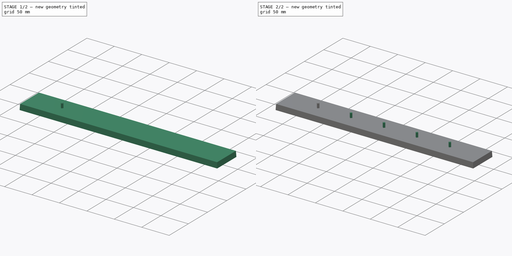
[diagram: build sequence overview — one tinted view per stage of 2, left to right]
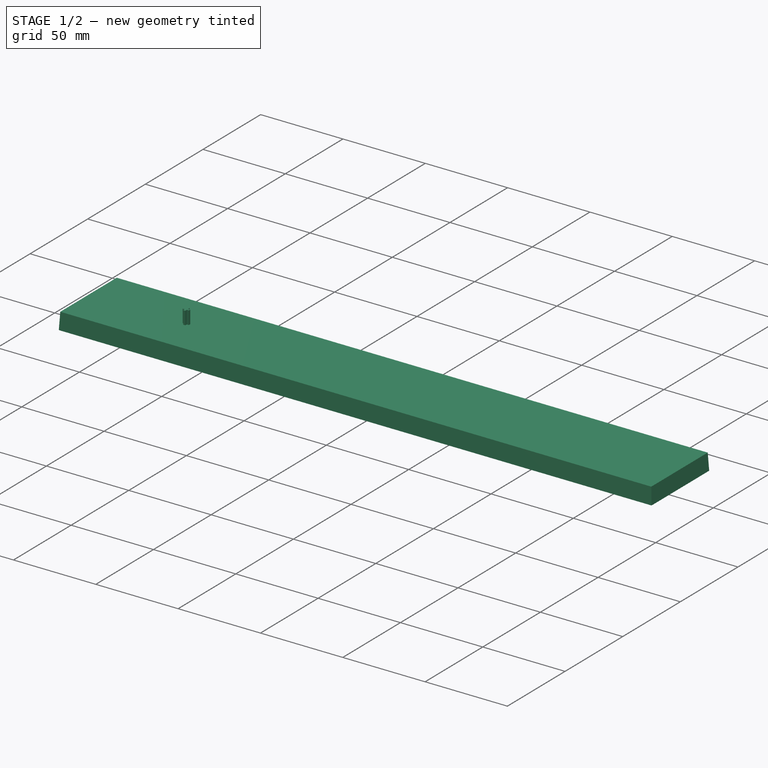
[diagram: stage 1 of 2 — iso view after this stage's code; geometry added in this stage tinted green]
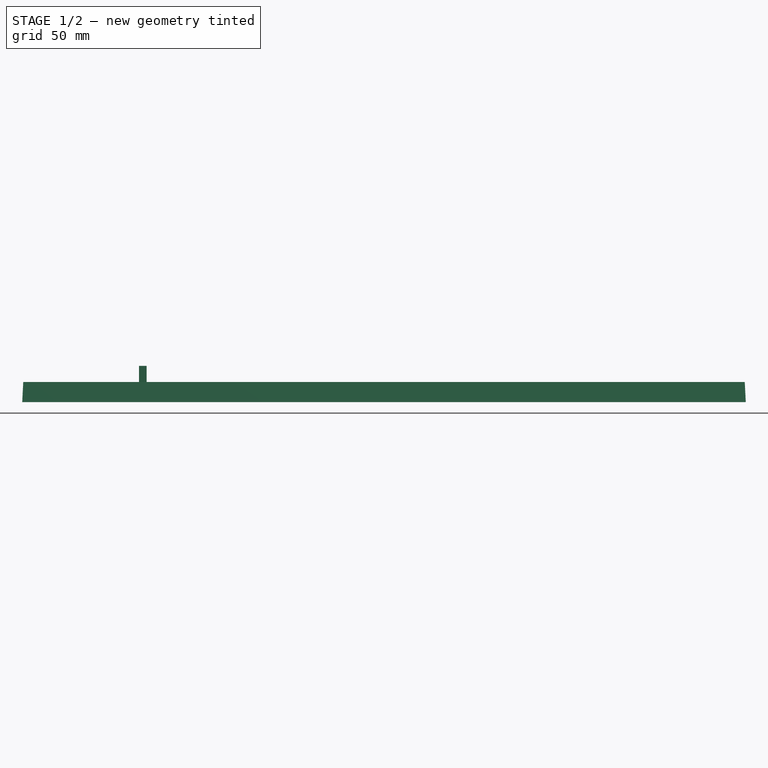
[diagram: stage 1 of 2 — front view after this stage's code; geometry added in this stage tinted green]
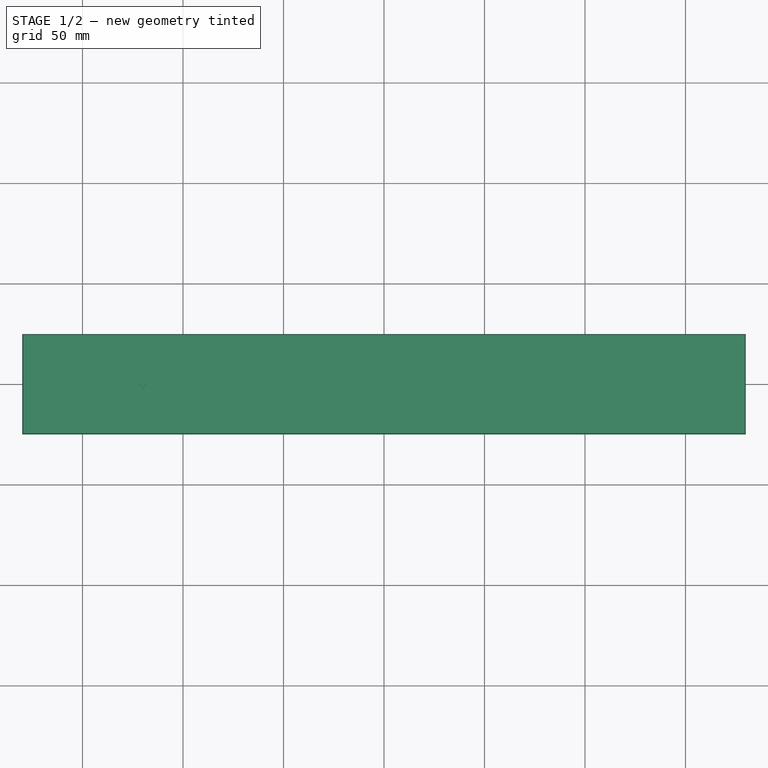
[diagram: stage 1 of 2 — top view after this stage's code; geometry added in this stage tinted green]
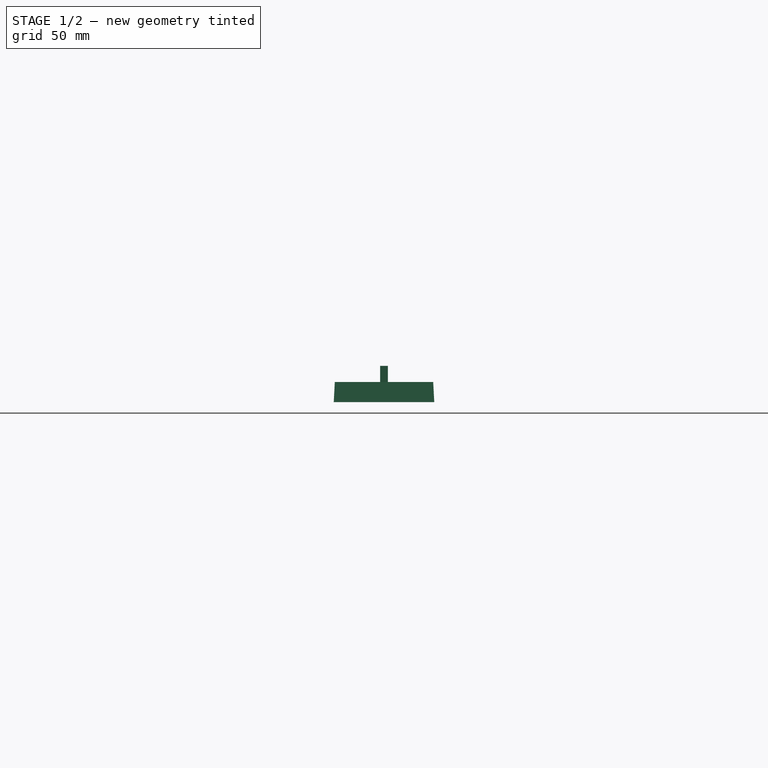
[diagram: stage 1 of 2 — right view after this stage's code; geometry added in this stage tinted green]
FCSTD DOCUMENT  (FreeCAD 0.20R29177 +426 (Git))
Label: AtariFnKeyPaintRig
License: MIT
LicenseURL: https://mit-license.org/
objects: Sketcher::SketchObject×2, PartDesign::Pad×2, PartDesign::Line×2, Spreadsheet::Sheet×1, PartDesign::Plane×1, PartDesign::LinearPattern×1, PartDesign::Body×1
note: 11 computed .brp shape members not serialized (recipe doc carries the construction recipe); baked Part::Feature solids carry a one-line shape summary decoded from their .brp

FEATURE [Spreadsheet::Sheet] Spreadsheet
  cells = A1=BaseWidth; B1(BaseWidth)==B4 * (B5 + 1); A2=BaseLength; B2(BaseLength)=50; A3=BaseHeight; B3(BaseHeight)=10; A4=KeyDistance; B4(KeyDistance)=60; A5=KeyCount; B5(KeyCount)=5; A6=KeySupportHeight; B6(KeySupportHeight)=8
FEATURE [Sketcher::SketchObject] Sketch
  FullyConstrained = true
  MapMode = 5
  Support = -> [XY_Plane]
  expr: Constraints[10] = <<Spreadsheet>>.BaseLength
  expr: Constraints[11] = <<Spreadsheet>>.BaseWidth
  sketch-geometry (5):
    g0: LineSegment StartX=-180 StartY=-25 StartZ=0 EndX=-180 EndY=25 EndZ=0
    g1: LineSegment StartX=-180 StartY=25 StartZ=0 EndX=180 EndY=25 EndZ=0
    g2: LineSegment StartX=180 StartY=25 StartZ=0 EndX=180 EndY=-25 EndZ=0
    g3: LineSegment StartX=180 StartY=-25 StartZ=0 EndX=-180 EndY=-25 EndZ=0
    g4: GeomPoint X=0 Y=0 Z=0
  constraints (12):
    c: Coincident(g0,g1)
    c: Coincident(g1,g2)
    c: Coincident(g2,g3)
    c: Coincident(g3,g0)
    c: Horizontal(g1)
    c: Horizontal(g3)
    c: Vertical(g0)
    c: Vertical(g2)
    c: Symmetric(g1,g0,g4)
    c: Coincident(g4,g-1)
    c: DistanceY(g0,g0) = 50
    c: DistanceX(g1,g1) = 360
FEATURE [PartDesign::Pad] Pad  label="Base"
  Direction = (0,0,1)
  Length = 10
  Length2 = 10
  Profile = -> Sketch
  ReferenceAxis = -> Sketch [N_Axis]
  TaperAngle = -3
  Type = 0
  expr: Length = <<Spreadsheet>>.BaseHeight
FEATURE [PartDesign::Plane] DatumPlane  label="TopOfBase"
  Length = 386.833
  MapMode = 5
  Placement = pos=(0,0,10) rot=(0,0,1;0rad)
  ResizeMode = 0
  Support = -> [Pad]
  Width = 76.8328
FEATURE [PartDesign::Line] DatumLine  label="Diagonal1"
  AttacherType = Attacher::AttachEngineLine
  Length = 20
  MapMode = 29
  Placement = pos=(0,-3.6e-15,10) rot=(0.52523,0.60172,0.60172;2.17434rad)
  ResizeMode = 0
  Support = -> [Pad]
FEATURE [PartDesign::Line] DatumLine001  label="Diagonal2"
  AttacherType = Attacher::AttachEngineLine
  Length = 20
  MapMode = 29
  Placement = pos=(0,-3.6e-15,10) rot=(0.629461,0.549445,0.549445;2.01799rad)
  ResizeMode = 0
  Support = -> [Pad]
FEATURE [Sketcher::SketchObject] Sketch001  label="KeySupportSketch"
  ExternalGeometry = -> [DatumLine,DatumLine001]
  FullyConstrained = true
  MapMode = 5
  Placement = pos=(0,0,10) rot=(0,0,1;0rad)
  Support = -> [DatumPlane]
  expr: Constraints[40] = <<Spreadsheet>>.KeyDistance * (Spreadsheet.KeyCount - 1) / 2
  sketch-geometry (15):
    g0: LineSegment StartX=-120.6 StartY=1.9 StartZ=0 EndX=-119.4 EndY=1.9 EndZ=0
    g1: LineSegment StartX=-119.4 StartY=1.9 StartZ=0 EndX=-119.4 EndY=0.6 EndZ=0
    g2: LineSegment StartX=-119.4 StartY=0.6 StartZ=0 EndX=-118.1 EndY=0.6 EndZ=0
    g3: LineSegment StartX=-118.1 StartY=0.6 StartZ=0 EndX=-118.1 EndY=-0.6 EndZ=0
    g4: LineSegment StartX=-118.1 StartY=-0.6 StartZ=0 EndX=-119.4 EndY=-0.6 EndZ=0
    g5: LineSegment StartX=-119.4 StartY=-0.6 StartZ=0 EndX=-119.4 EndY=-1.9 EndZ=0
    g6: LineSegment StartX=-119.4 StartY=-1.9 StartZ=0 EndX=-120.6 EndY=-1.9 EndZ=0
    g7: LineSegment StartX=-120.6 StartY=-1.9 StartZ=0 EndX=-120.6 EndY=-0.6 EndZ=0
    g8: LineSegment StartX=-120.6 StartY=-0.6 StartZ=0 EndX=-121.9 EndY=-0.6 EndZ=0
    g9: LineSegment StartX=-121.9 StartY=-0.6 StartZ=0 EndX=-121.9 EndY=0.6 EndZ=0
    g10: LineSegment StartX=-121.9 StartY=0.6 StartZ=0 EndX=-120.6 EndY=0.6 EndZ=0
    g11: LineSegment StartX=-120.6 StartY=0.6 StartZ=0 EndX=-120.6 EndY=1.9 EndZ=0
    g12: GeomPoint X=-120 Y=0 Z=0
    g13: LineSegment StartX=-120.6 StartY=-0.6 StartZ=0 EndX=-119.4 EndY=0.6 EndZ=0
    g14: GeomPoint X=-1.104e-13 Y=2.31e-14 Z=0
  constraints (41):
    c: Horizontal(g0)
    c: Coincident(g0,g1)
    c: Vertical(g1)
    c: Coincident(g1,g2)
    c: Horizontal(g2)
    c: Coincident(g2,g3)
    c: Vertical(g3)
    c: Coincident(g3,g4)
    c: Horizontal(g4)
    c: Coincident(g4,g5)
    c: Vertical(g5)
    c: Coincident(g5,g6)
    c: Horizontal(g6)
    c: Coincident(g6,g7)
    c: Vertical(g7)
    c: Coincident(g7,g8)
    c: Horizontal(g8)
    c: Coincident(g8,g9)
    c: Vertical(g9)
    c: Coincident(g9,g10)
    c: Horizontal(g10)
    c: Coincident(g10,g11)
    c: Coincident(g11,g0)
    c: Vertical(g11)
    c: Equal(g11,g1)
    c: Equal(g2,g4)
    c: Equal(g0,g6)
    c: Equal(g3,g9)
    c: Equal(g4,g5)
    c: Equal(g7,g11)
    c: Equal(g8,g4)
    c: Equal(g9,g0)
    c: DistanceX(g0,g0) = 1.2
    c: DistanceX(g8,g3) = 3.8
    c: Coincident(g13,g7)
    c: Coincident(g13,g1)
    c: Symmetric(g7,g1,g12)
    c: DistanceY(g-1,g12) = 0
    c: PointOnObject(g14,g-3)
    c: PointOnObject(g14,g-4)
    c: DistanceX(g12,g14) = 120
FEATURE [PartDesign::Pad] Pad001  label="KeyPeg"
  BaseFeature = -> Pad
  Direction = (0,0,1)
  Length = 8
  Length2 = 10
  Profile = -> Sketch001
  ReferenceAxis = -> Sketch001 [N_Axis]
  Type = 0
  expr: Length = <<Spreadsheet>>.KeySupportHeight
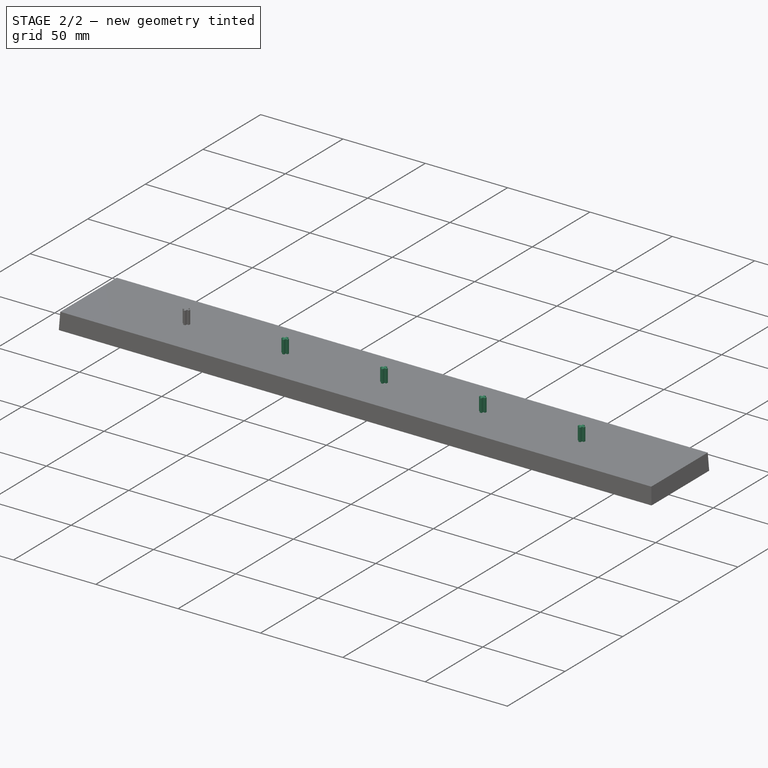
[diagram: stage 2 of 2 — iso view after this stage's code; geometry added in this stage tinted green]
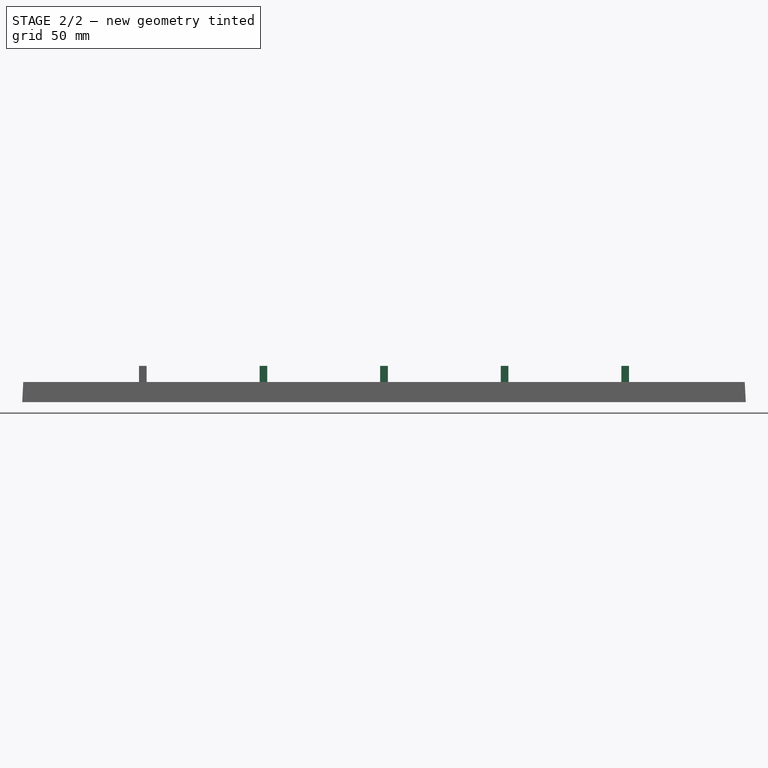
[diagram: stage 2 of 2 — front view after this stage's code; geometry added in this stage tinted green]
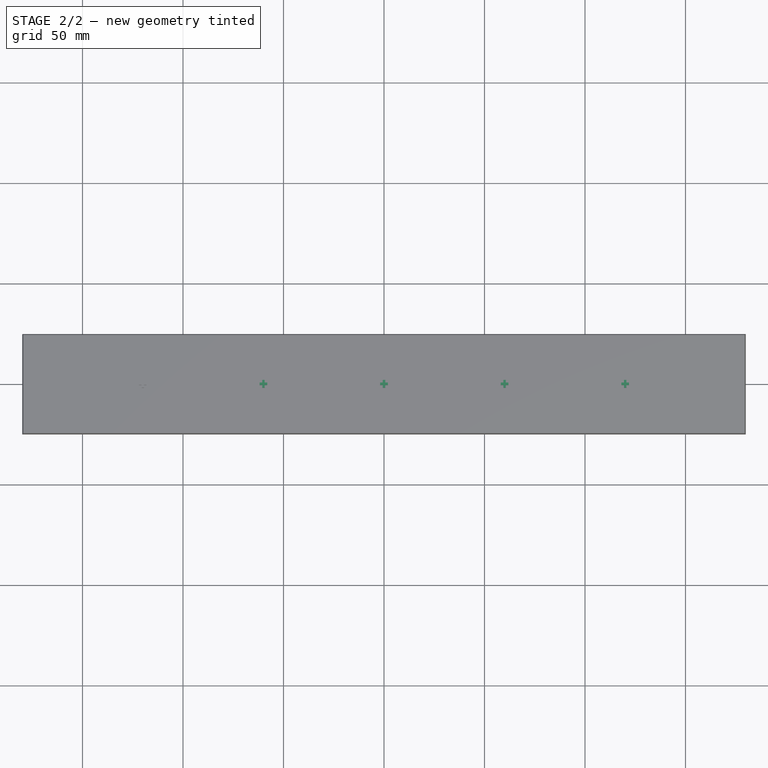
[diagram: stage 2 of 2 — top view after this stage's code; geometry added in this stage tinted green]
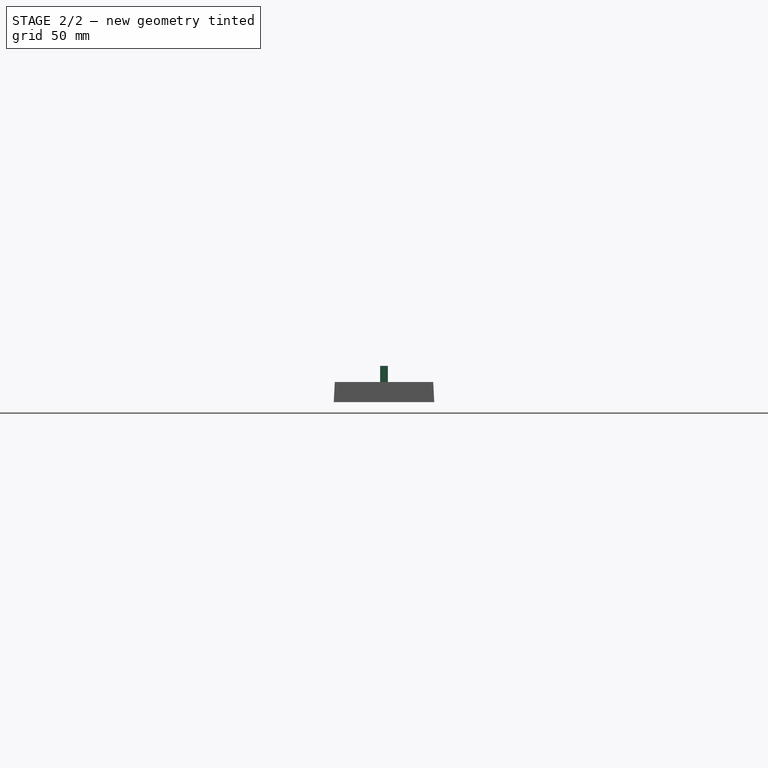
[diagram: stage 2 of 2 — right view after this stage's code; geometry added in this stage tinted green]
FEATURE [PartDesign::LinearPattern] LinearPattern  label="RepeatKeyPeg"
  BaseFeature = -> Pad001
  Direction = -> Sketch001 [H_Axis]
  Length = 240
  Occurrences = 5
  Originals = -> [Pad001]
  expr: Length = (<<Spreadsheet>>.KeyCount - 1) * <<Spreadsheet>>.KeyDistance
  expr: Occurrences = <<Spreadsheet>>.KeyCount
FEATURE [PartDesign::Body] Body
  Group = -> [Sketch,Pad,DatumPlane,Sketch001,DatumLine,DatumLine001,Pad001,LinearPattern]
  Origin = -> Origin
  Tip = -> LinearPattern
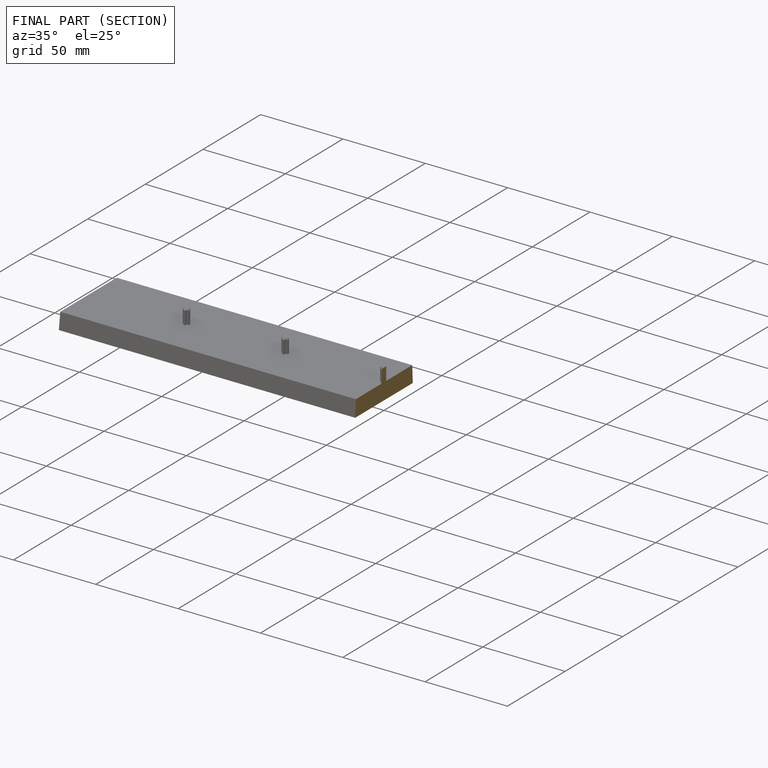
[diagram: finished part — half-section view (interior)]
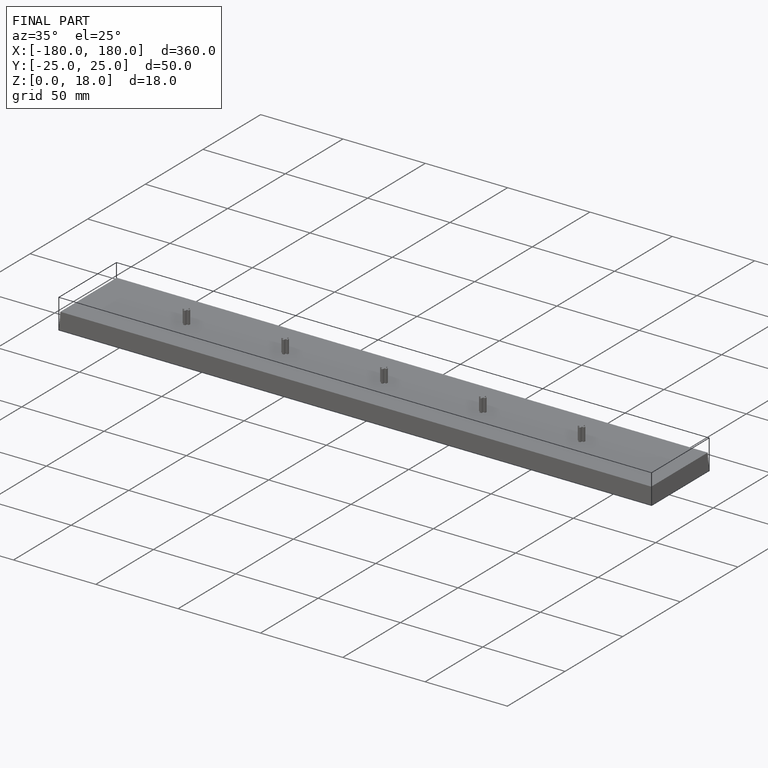
[diagram: finished part — iso view with bounding-box wireframe]
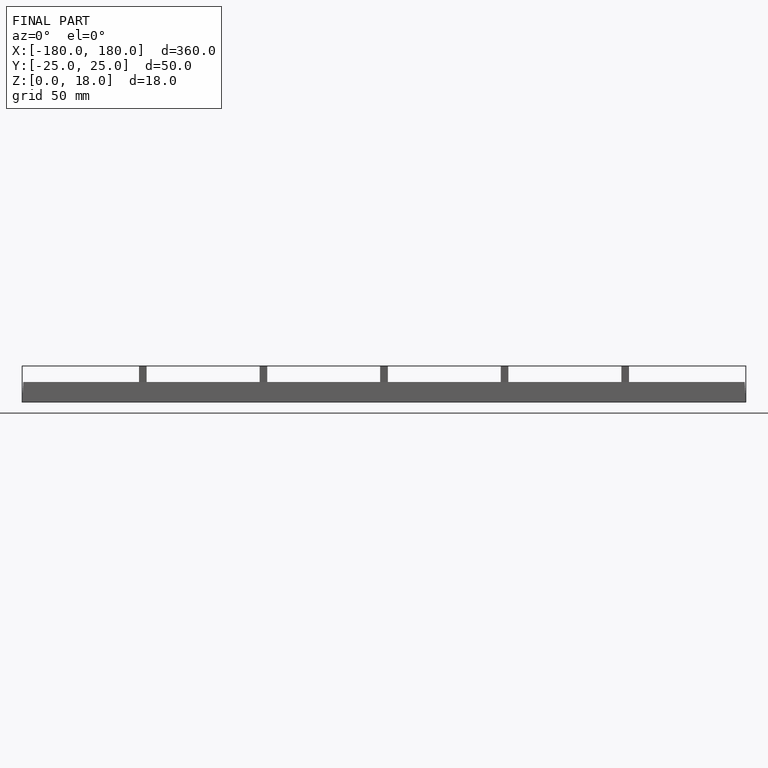
[diagram: finished part — front view with bounding-box wireframe]
